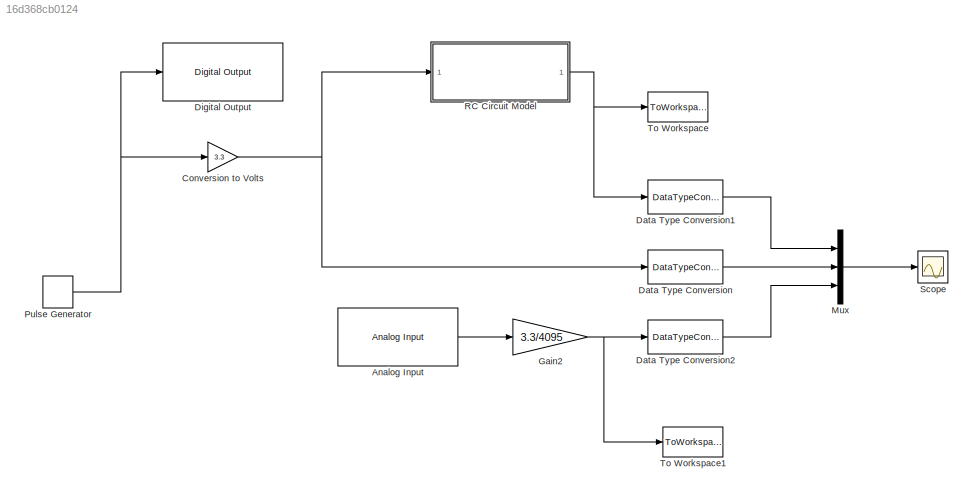
MODEL slx_16d368cb0124
KIND model
CONFIG AbsTol = auto
CONFIG EnableMultiTasking = off
CONFIG FixedStep = auto
CONFIG MaxStep = auto
CONFIG MinStep = auto
CONFIG RelTol = 1e-3
CONFIG SampleTimeConstraint = Unconstrained
CONFIG SolverName = VariableStepAuto
CONFIG StartTime = 0.0
CONFIG StopTime = 10.0
BLOCK [Reference] Analog Input  REF=arduinolib/Analog Input
  Ports = [0, 1]
  SourceBlock = arduinolib/Analog Input
  SourceProductBaseCode = ARDUINO
  SourceType = Arduino Analog Input
BLOCK [Gain] Conversion to Volts
  Gain = 3.3
BLOCK [DataTypeConversion] Data Type Conversion
  OutDataTypeStr = double
  RndMeth = Floor
  SaturateOnIntegerOverflow = off
BLOCK [DataTypeConversion] Data Type Conversion1
  OutDataTypeStr = double
  RndMeth = Floor
  SaturateOnIntegerOverflow = off
BLOCK [DataTypeConversion] Data Type Conversion2
  OutDataTypeStr = double
  RndMeth = Floor
  SaturateOnIntegerOverflow = off
BLOCK [Reference] Digital Output  REF=arduinolib/Digital Output
  Ports = [1]
  SourceBlock = arduinolib/Digital Output
  SourceProductBaseCode = ARDUINO
  SourceType = Arduino Digital Output
BLOCK [Gain] Gain2
  Gain = 3.3/4095
BLOCK [Mux] Mux
  DisplayOption = bar
  Inputs = 3
  Ports = [3, 1]
BLOCK [DiscretePulseGenerator] Pulse Generator
  Period = 100
  PhaseDelay = 50
  Ports = [0, 1]
  PulseWidth = 50
  SampleTime = 0.1
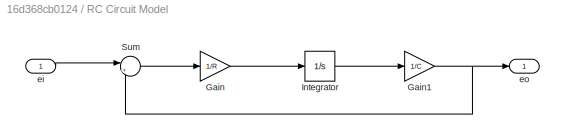
BLOCK [SubSystem] RC Circuit Model
  Ports = [1, 1]
  RequestExecContextInheritance = off
BLOCK [Gain] RC Circuit Model/Gain
  Gain = 1/R
BLOCK [Gain] RC Circuit Model/Gain1
  Gain = 1/C
BLOCK [Integrator] RC Circuit Model/Integrator
  InitialCondition = q_init
  Ports = [1, 1]
BLOCK [Sum] RC Circuit Model/Sum
  Inputs = |+-
  Ports = [2, 1]
BLOCK [Inport] RC Circuit Model/ei
BLOCK [Outport] RC Circuit Model/eo
  VectorParamsAs1DForOutWhenUnconnected = off
BLOCK [Scope] Scope
  Floating = off
  NumInputPorts = 1
  Ports = [1]
  ScopeSpecificationString = Simulink.scopes.TimeScopeBlockCfg('CurrentConfiguration', extmgr.ConfigurationSet(extmgr.Configuration('Core','General UI',true),extmgr.Configuration('Core','Source UI',true),extmgr.Configuration('Sources','WiredSimulink',true),extmgr.Configuration('Visuals','Time Domain',true,'SerializedDisplays',{struct('MinYLimReal','-0.4125','MaxYLimReal','3.7125','YLabelReal','','MinYLimMag','0.00000','MaxYLi...<+1421ch>
BLOCK [ToWorkspace] To Workspace
  FixptAsFi = on
  MaxDataPoints = inf
  Ports = [1]
  SampleTime = -1
  Save2DSignal = 2-D array (concatenate along first dimension)
  VariableName = eo_sim
BLOCK [ToWorkspace] To Workspace1
  FixptAsFi = on
  MaxDataPoints = inf
  Ports = [1]
  SampleTime = -1
  Save2DSignal = 2-D array (concatenate along first dimension)
  VariableName = eo_act
LINE Analog Input:1 -> Gain2:1
NET Conversion to Volts:1 -> Data Type Conversion:1, RC Circuit Model:1
LINE Data Type Conversion1:1 -> Mux:1
LINE Data Type Conversion2:1 -> Mux:3
LINE Data Type Conversion:1 -> Mux:2
NET Gain2:1 -> Data Type Conversion2:1, To Workspace1:1
LINE Mux:1 -> Scope:1
NET Pulse Generator:1 -> Conversion to Volts:1, Digital Output:1
NET RC Circuit Model/Gain1:1 -> RC Circuit Model/Sum:2, RC Circuit Model/eo:1
LINE RC Circuit Model/Gain:1 -> RC Circuit Model/Integrator:1
LINE RC Circuit Model/Integrator:1 -> RC Circuit Model/Gain1:1
LINE RC Circuit Model/Sum:1 -> RC Circuit Model/Gain:1
LINE RC Circuit Model/ei:1 -> RC Circuit Model/Sum:1
NET RC Circuit Model:1 -> Data Type Conversion1:1, To Workspace:1
note: NET lines group one-source signal fan-out (src -> all destinations, sorted); 1:1 wires keep LINE
